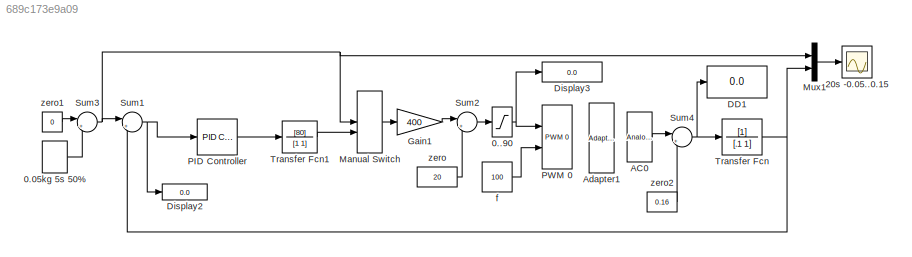
MODEL slx_689c173e9a09
KIND model
CONFIG AbsTol = auto
CONFIG EnableMultiTasking = off
CONFIG FixedStep = auto
CONFIG MaxStep = auto
CONFIG MinStep = auto
CONFIG RelTol = 1e-3
CONFIG SampleTimeConstraint = Unconstrained
CONFIG Solver = FixedStepAuto
CONFIG SolverName = FixedStepAuto
CONFIG StartTime = 0.0
CONFIG StopTime = inf
BLOCK [Saturate] 0..90
  InputPortMap = u0
  LowerLimit = 0
  Ports = [1, 1]
  UpperLimit = 90
BLOCK [DiscretePulseGenerator] 0.05kg 5s 50%
  Amplitude = 0.1
  Period = 10
  Ports = [0, 1]
  PulseType = Time based
  PulseWidth = 50
BLOCK [Scope] 20s -0.05..0.15
  NumInputPorts = 1
  Ports = [1]
  ScopeSpecificationString = Simulink.scopes.TimeScopeBlockCfg('CurrentConfiguration', extmgr.ConfigurationSet(extmgr.Configuration('Core','General UI',true,'FigureColor',[0 0 0]),extmgr.Configuration('Core','Source UI',true),extmgr.Configuration('Sources','WiredSimulink',true,'DataLoggingVariableName','ScopeData1','DataLoggingLimitDataPoints',true,'DataLoggingSaveFormat','Array','DataLoggingDecimation','1','DataLoggingDecima...<+2817ch>
BLOCK [Reference] AC0  REF=Rayannik/Analog Input
  Ports = [0, 1]
  Priority = 2
  SourceBlock = Rayannik/Analog Input
  SourceType = Analog Input
BLOCK [Reference] Adapter1  REF=Rayannik/Adapter
  Ports = []
  SourceBlock = Rayannik/Adapter
BLOCK [Display] DD1
  Decimation = 1
  Ports = [1]
BLOCK [Display] Display2
  Decimation = 1
  Ports = [1]
BLOCK [Display] Display3
  Decimation = 1
  Ports = [1]
BLOCK [Gain] Gain1
  Gain = 400
  OutDataTypeStr = Inherit: Inherit via internal rule
  ParamDataTypeStr = Inherit: Inherit via internal rule
  SaturateOnIntegerOverflow = off
BLOCK [ManualSwitch] Manual Switch
BLOCK [Mux] Mux1
  DisplayOption = bar
  Inputs = 2
  Ports = [2, 1]
BLOCK [Reference] PID Controller  REF=simulink/Continuous/PID Controller
  Ports = [1, 1]
  SourceBlock = simulink/Continuous/PID Controller
  SourceType = PID 1dof
BLOCK [Reference] PWM 0  REF=Rayannik/PWM 0
  Ports = [2]
  Priority = 2
  SourceBlock = Rayannik/PWM 0
  SourceType = PWM Output
BLOCK [Sum] Sum1
  IconShape = round
  InputSameDT = off
  Inputs = |+-
  OutDataTypeStr = Inherit: Inherit via internal rule
  Ports = [2, 1]
  SaturateOnIntegerOverflow = off
BLOCK [Sum] Sum2
  IconShape = round
  InputSameDT = off
  Inputs = |++
  OutDataTypeStr = Inherit: Inherit via internal rule
  Ports = [2, 1]
  SaturateOnIntegerOverflow = off
BLOCK [Sum] Sum3
  IconShape = round
  InputSameDT = off
  Inputs = |++
  OutDataTypeStr = Inherit: Inherit via internal rule
  Ports = [2, 1]
  SaturateOnIntegerOverflow = off
BLOCK [Sum] Sum4
  IconShape = round
  InputSameDT = off
  Inputs = |++
  OutDataTypeStr = Inherit: Inherit via internal rule
  Ports = [2, 1]
  SaturateOnIntegerOverflow = off
BLOCK [TransferFcn] Transfer Fcn
  Denominator = [.1 1]
BLOCK [TransferFcn] Transfer Fcn1
  Denominator = [1 1]
  Numerator = [80]
BLOCK [Constant] f
  Value = 100
BLOCK [Constant] zero
  SampleTime = 1
  Value = 20
BLOCK [Constant] zero1
  SampleTime = 1
  Value = 0
BLOCK [Constant] zero2
  SampleTime = 1
  Value = 0.16
NET 0..90:1 -> Display3:1, PWM 0:1
LINE 0.05kg 5s 50%:1 -> Sum3:2
LINE AC0:1 -> Sum4:1
LINE Gain1:1 -> Sum2:1
LINE Manual Switch:1 -> Gain1:1
LINE Mux1:1 -> 20s -0.05..0.15:1
LINE PID Controller:1 -> Transfer Fcn1:1
NET Sum1:1 -> Display2:1, PID Controller:1
LINE Sum2:1 -> 0..90:1
NET Sum3:1 -> Manual Switch:1, Mux1:1, Sum1:1
NET Sum4:1 -> DD1:1, Transfer Fcn:1
LINE Transfer Fcn1:1 -> Manual Switch:2
NET Transfer Fcn:1 -> Mux1:2, Sum1:2
LINE f:1 -> PWM 0:2
LINE zero1:1 -> Sum3:1
LINE zero2:1 -> Sum4:2
LINE zero:1 -> Sum2:2
note: NET lines group one-source signal fan-out (src -> all destinations, sorted); 1:1 wires keep LINE
